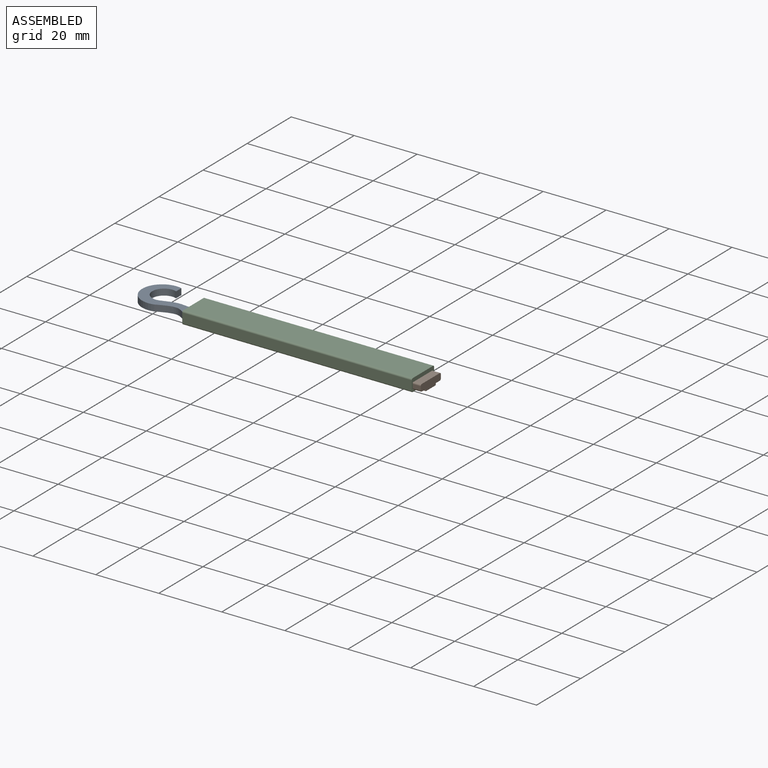
[diagram: assembled view]
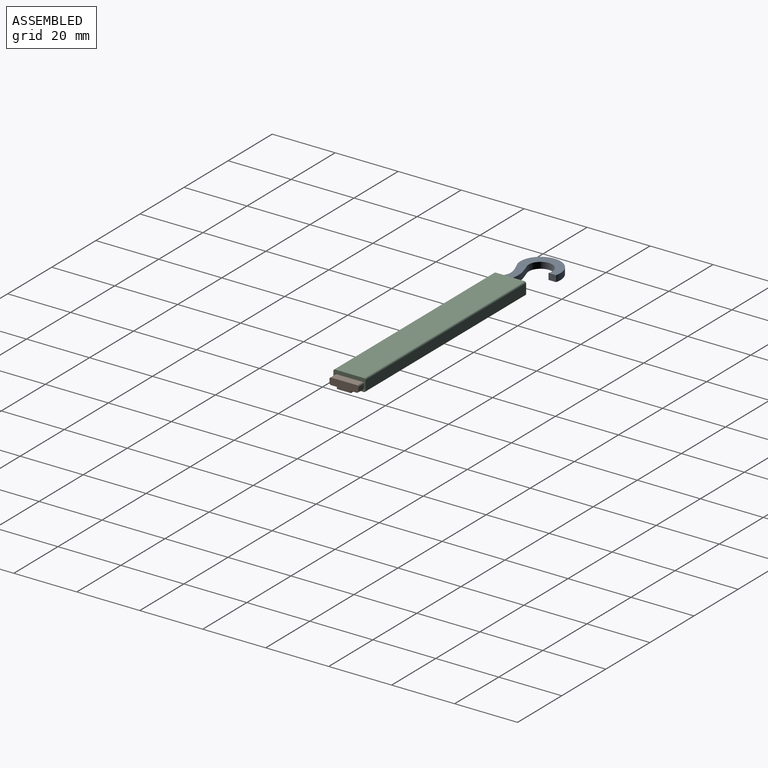
[diagram: assembled view, second angle]
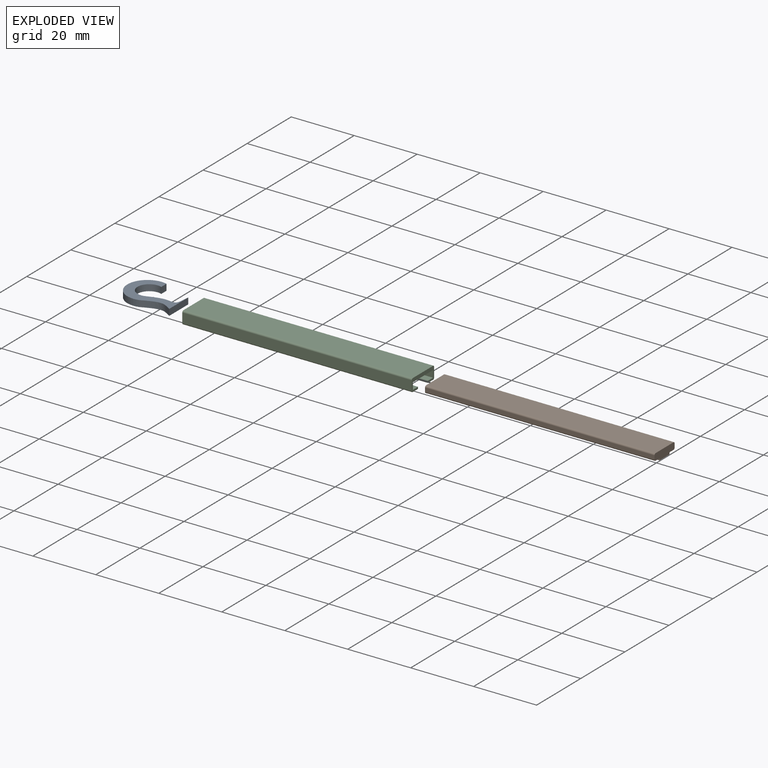
[diagram: exploded view]
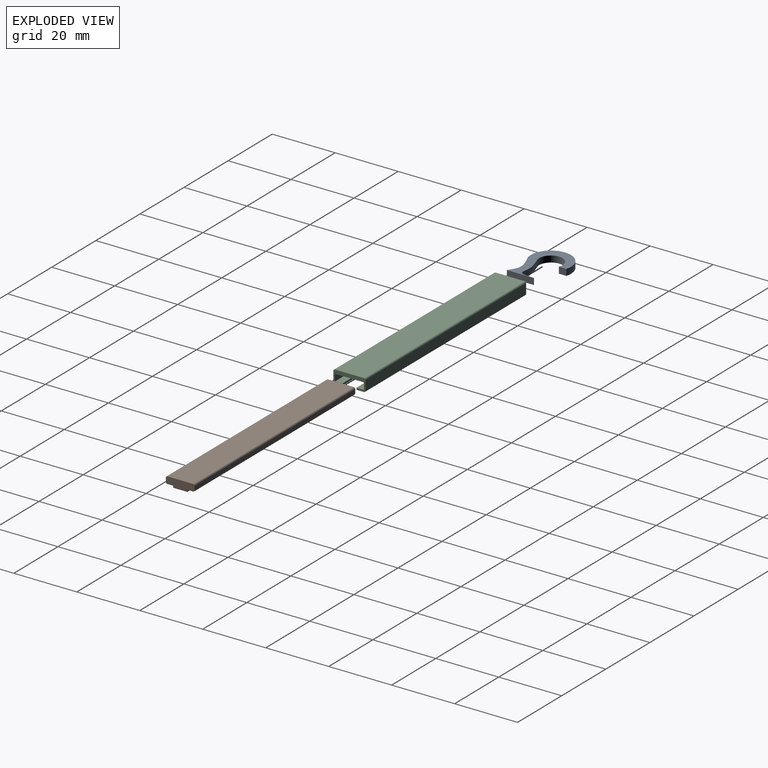
[diagram: exploded view, second angle]
ASSEMBLY  parts=3 mates=2
PART A: 8 faces, bbox 17.6x12.8x2 mm
  f0: extruded ~9.45x5.69mm, area 26.8mm2, adj f1,f5,f6,f7
  f1: plane 8.63x2mm, normal (1,0,0), area 17.3mm2, adj f0,f2,f6,f7
  f2: extruded ~9.45x2mm, area 20.4mm2, adj f1,f3,f6,f7
  f3: cylinder r=6.39mm len=12.77mm, axis (0,0,1), area 47.2mm2, adj f2,f4,f6,f7
  f4: plane 2.38x2mm, normal (1,0,0), area 4.8mm2, adj f3,f5,f6,f7
  f5: cylinder r=3.75mm len=7.49mm, axis (0,0,1), area 29.2mm2, adj f0,f4,f6,f7
  f6: plane 17.6x12.77mm, normal (0,0,-1), area 82.1mm2, adj f0,f1,f2,f3,f4,f5
  f7: plane 17.6x12.77mm, normal (0,0,1), area 82.1mm2, adj f0,f1,f2,f3,f4,f5
PART B: 14 faces, bbox 72.9x9.1x2.8 mm
  f0: plane 72.87x1.83mm, normal (0,0,-1), area 133.7mm2, adj f1,f8,f9,f13
  f1: plane 72.87x0.6mm, normal (0,-1,0), area 43.6mm2, adj f0,f2,f8,f9
  f2: plane 72.87x4.48mm, normal (0,0,-1), area 326.5mm2, adj f1,f3,f8,f9
  f3: plane 72.87x0.6mm, normal (0,1,0), area 43.6mm2, adj f2,f4,f8,f9
  f4: plane 72.87x1.83mm, normal (0,0,-1), area 133.7mm2, adj f3,f8,f9,f11
  f5: plane 72.87x1.18mm, normal (0,1,0), area 86.3mm2, adj f8,f9,f11,f12
  f6: plane 72.87x8.15mm, normal (0,0,1), area 593.8mm2, adj f8,f9,f10,f12
  f7: plane 72.87x1.18mm, normal (0,-1,0), area 86.3mm2, adj f8,f9,f10,f13
  f8: plane 9.15x2.78mm, normal (1,0,0), area 22.5mm2, adj f0,f1,f2,f3,f4,f5,f6,f7
  f9: plane 9.15x2.78mm, normal (-1,0,0), area 22.5mm2, adj f0,f1,f2,f3,f4,f5,f6,f7
  f10: cylinder r=0.5mm len=72.87mm, axis (-1,0,0), area 57.2mm2, adj f6,f7,f8,f9
  f11: cylinder r=0.5mm len=72.87mm, axis (1,0,0), area 57.2mm2, adj f4,f5,f8,f9
  f12: cylinder r=0.5mm len=72.87mm, axis (1,0,0), area 57.2mm2, adj f5,f6,f8,f9
  f13: cylinder r=0.5mm len=72.87mm, axis (-1,0,0), area 57.2mm2, adj f0,f7,f8,f9
PART C: 18 faces, bbox 72.9x10.2x4 mm
  f0: plane 72.87x3mm, normal (0,1,0), area 218.6mm2, adj f1,f3,f15,f17
  f1: plane 10.19x4mm, normal (-1,0,0), area 40.5mm2, adj f0,f2,f4,f5,f14,f15,f16,f17
  f2: plane 72.87x3mm, normal (0,-1,0), area 218.6mm2, adj f1,f3,f14,f16
  f3: plane 10.19x4mm, normal (1,0,0), area 17.9mm2, adj f0,f2,f4,f5,f6,f7,f8,f9
  f4: plane 72.87x9.19mm, normal (0,0,1), area 669.6mm2, adj f1,f3,f16,f17
  f5: plane 72.87x9.19mm, normal (0,0,-1), area 348.3mm2, adj f1,f3,f7,f8,f13,f14,f15
  f6: plane 71.7x2.33mm, normal (0,0,1), area 167.4mm2, adj f3,f7,f12,f13
  f7: plane 71.7x0.6mm, normal (0,1,0), area 42.9mm2, adj f3,f5,f6,f13
  f8: plane 71.7x0.6mm, normal (0,-1,0), area 42.9mm2, adj f3,f5,f9,f13
  f9: plane 71.7x2.33mm, normal (0,0,1), area 167.4mm2, adj f3,f8,f10,f13
  f10: plane 71.7x2.18mm, normal (0,-1,0), area 156.6mm2, adj f3,f9,f11,f13
  f11: plane 71.7x9.15mm, normal (0,0,-1), area 656mm2, adj f3,f10,f12,f13
  f12: plane 71.7x2.18mm, normal (0,1,0), area 156.6mm2, adj f3,f6,f11,f13
  f13: plane 9.15x2.78mm, normal (1,0,0), area 22.7mm2, adj f5,f6,f7,f8,f9,f10,f11,f12
  f14: cylinder r=0.5mm len=72.87mm, axis (1,0,0), area 57.2mm2, adj f1,f2,f3,f5
  f15: cylinder r=0.5mm len=72.87mm, axis (-1,0,0), area 57.2mm2, adj f0,f1,f3,f5
  f16: cylinder r=0.5mm len=72.87mm, axis (-1,0,0), area 57.2mm2, adj f1,f2,f3,f4
  f17: cylinder r=0.5mm len=72.87mm, axis (1,0,0), area 57.2mm2, adj f0,f1,f3,f4
PLACE A t=(10.97,61.6,25.55)mm
PLACE B t=(-60,61.66,25.55)mm
PLACE C t=(10.37,61.66,25.55)mm
MATE slider B.f9 <-> C.f13  axis (-1,0,0) through (-51.67,61.66,27.08)mm
MATE fastened A.f1 <-> C.f1  axis (1,0,0) through (-54.16,61.66,27.55)mm
